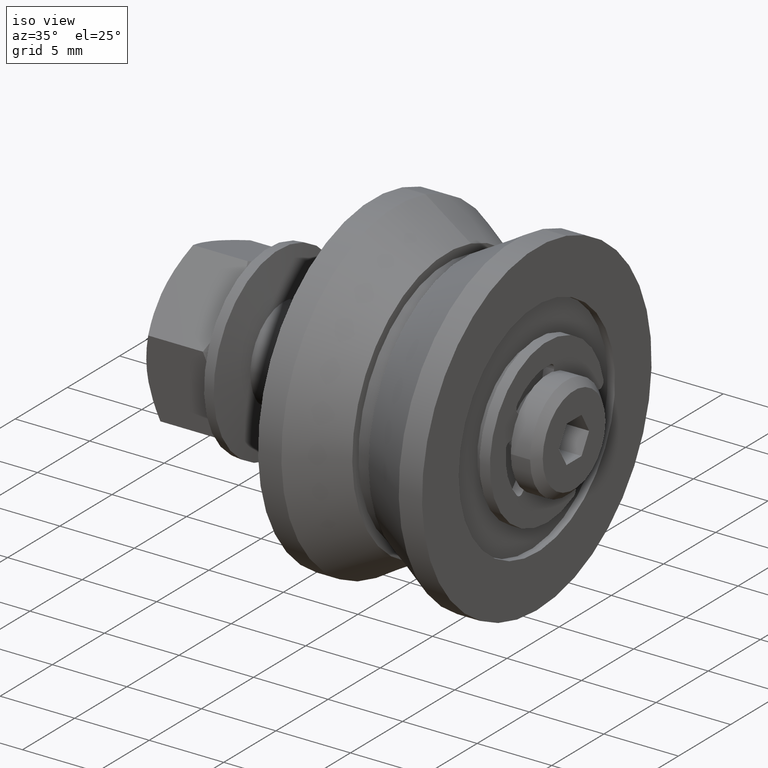
[diagram: clean part render]
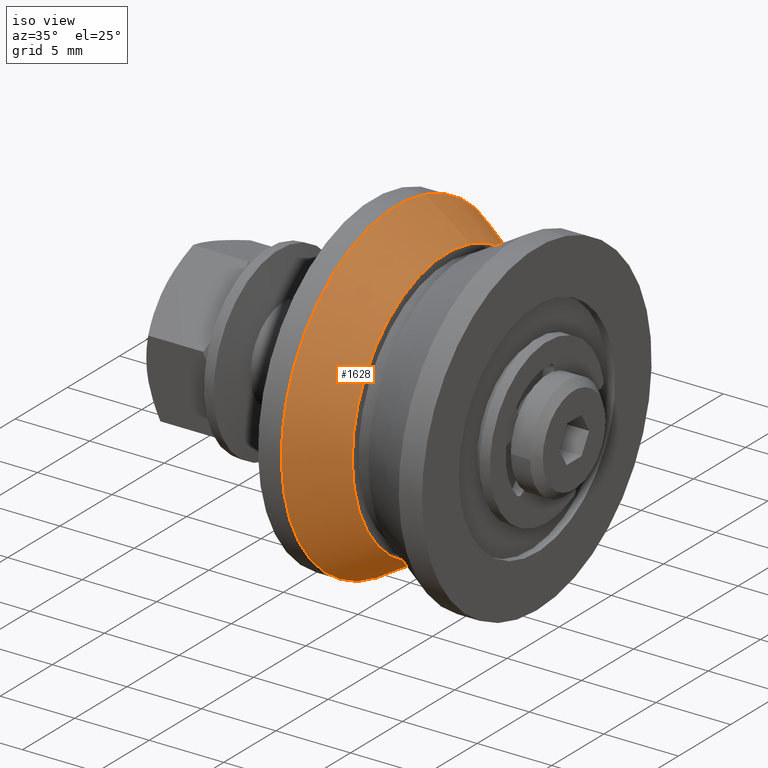
[diagram: same view with one face highlighted and labeled with its STEP entity id]
A machine part, iso view. The second image highlights one B-rep face of the part: STEP entity #1628.
In plain terms, the highlighted conical surface has half-angle 30 deg.
Its self-contained STEP definition (entity closure, byte-faithful):
#246=FACE_OUTER_BOUND('',#359,.T.);
#359=EDGE_LOOP('',(#1325,#1326,#1327,#1328));
#479=LINE('',#2792,#599);
#599=VECTOR('',#2293,10.022019978079);
#694=CIRCLE('',#1919,9.04403995615804);
#695=CIRCLE('',#1921,11.);
#812=VERTEX_POINT('',#2787);
#813=VERTEX_POINT('',#2790);
#994=EDGE_CURVE('',#812,#812,#694,.T.);
#995=EDGE_CURVE('',#813,#813,#695,.T.);
#996=EDGE_CURVE('',#813,#812,#479,.T.);
#1325=ORIENTED_EDGE('',*,*,#995,.F.);
#1326=ORIENTED_EDGE('',*,*,#996,.T.);
#1327=ORIENTED_EDGE('',*,*,#994,.T.);
#1328=ORIENTED_EDGE('',*,*,#996,.F.);
#1566=CONICAL_SURFACE('',#1920,10.022019978079,0.523598775598295);
#1628=ADVANCED_FACE('',(#246),#1566,.T.);
#1919=AXIS2_PLACEMENT_3D('',#2788,#2287,#2288);
#1920=AXIS2_PLACEMENT_3D('',#2789,#2289,#2290);
#1921=AXIS2_PLACEMENT_3D('',#2791,#2291,#2292);
#2287=DIRECTION('center_axis',(1.,0.,0.));
#2288=DIRECTION('ref_axis',(0.,1.,0.));
#2289=DIRECTION('center_axis',(1.,0.,0.));
#2290=DIRECTION('ref_axis',(0.,1.,0.));
#2291=DIRECTION('center_axis',(1.,0.,0.));
#2292=DIRECTION('ref_axis',(0.,1.,0.));
#2293=DIRECTION('',(-0.866025403784441,0.499999999999997,6.12323399573673E-17));
#2787=CARTESIAN_POINT('',(0.55,-9.04403995615804,-1.10757545836697E-15));
#2788=CARTESIAN_POINT('Origin',(0.55,0.,0.));
#2789=CARTESIAN_POINT('Origin',(2.24391108675448,0.,0.));
#2790=CARTESIAN_POINT('',(3.93782217350896,-11.,-1.34711147906209E-15));
#2791=CARTESIAN_POINT('Origin',(3.93782217350896,0.,0.));
#2792=CARTESIAN_POINT('',(2.24391108675448,-10.022019978079,-1.22734346871453E-15));